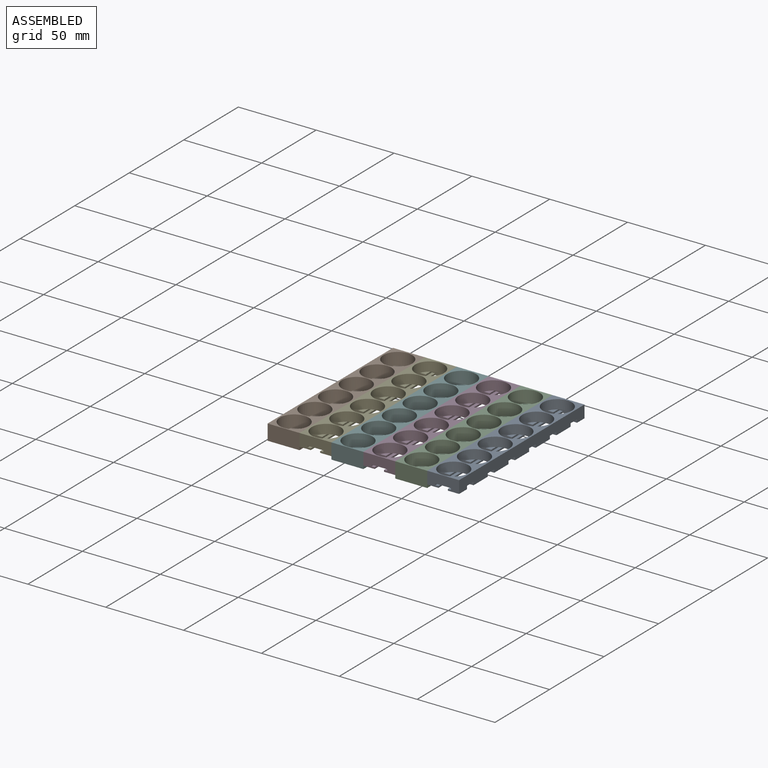
[diagram: assembled view]
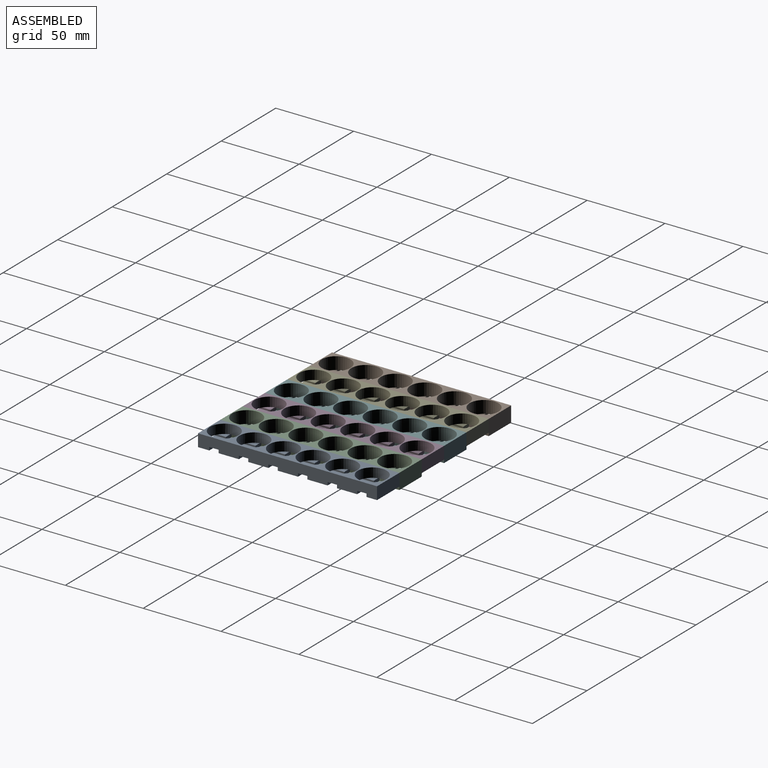
[diagram: assembled view, second angle]
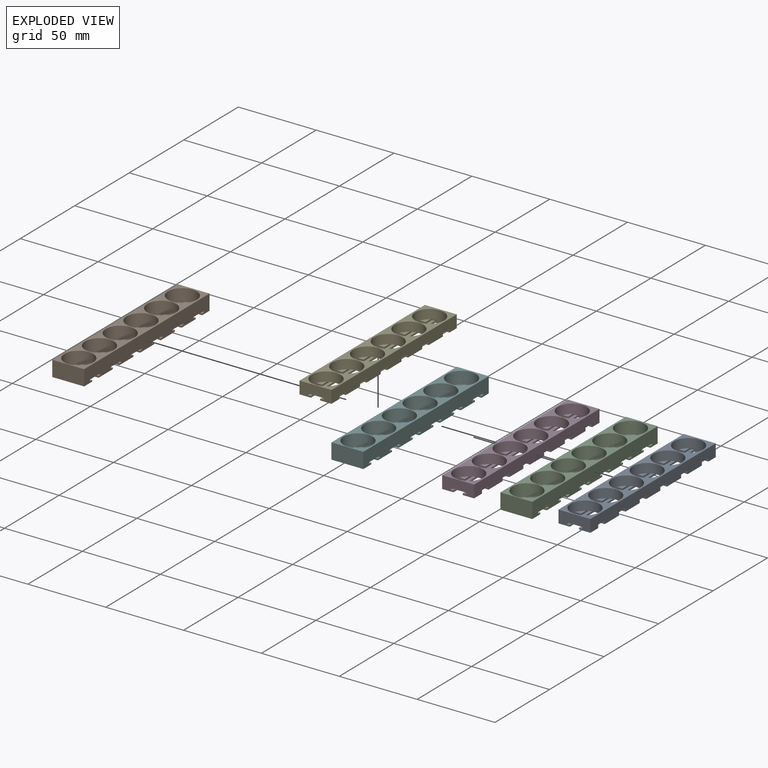
[diagram: exploded view]
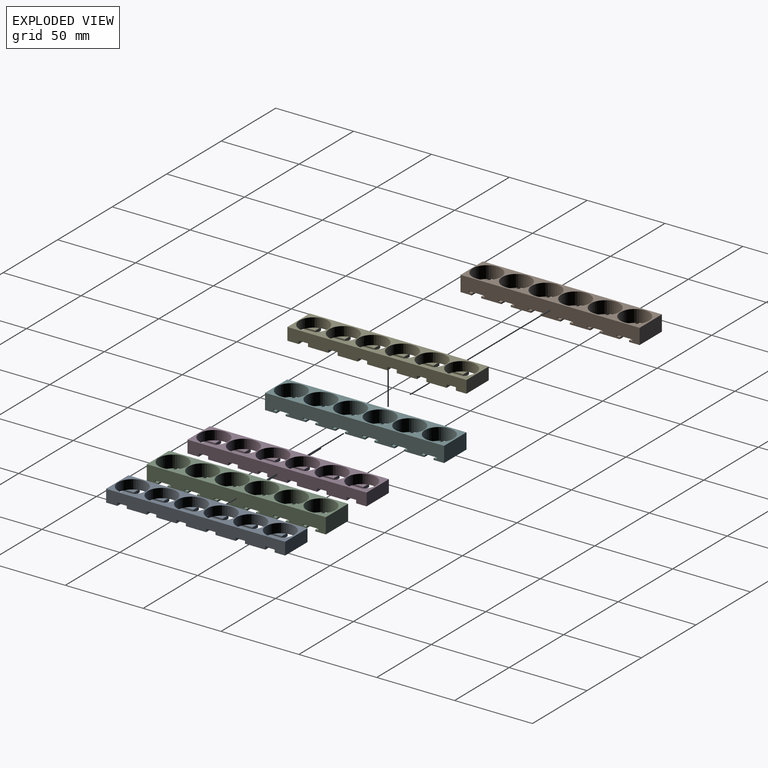
[diagram: exploded view, second angle]
ASSEMBLY  parts=6 mates=3
PART A: 135 faces, bbox 20.5x115x8 mm
  f0: plane 4.28x3.56mm, normal (0,0,1), area 9.2mm2, adj f48,f75,f118
  f1: plane 4.28x3.56mm, normal (0,0,1), area 9.2mm2, adj f47,f69,f121
  f2: plane 4.28x3.56mm, normal (0,0,1), area 9.2mm2, adj f46,f70,f124
  f3: plane 4.28x3.56mm, normal (0,0,1), area 9.2mm2, adj f45,f71,f127
  f4: plane 4.28x3.56mm, normal (0,0,1), area 9.2mm2, adj f44,f72,f130
  f5: plane 4.28x3.56mm, normal (0,0,1), area 9.2mm2, adj f43,f73,f133
  f6: plane 115x8mm, normal (1,0,0), area 848mm2, adj f13,f15,f17,f19,f21,f23,f67,f74
  f7: plane 4.28x3.56mm, normal (0,0,1), area 9.2mm2, adj f60,f75,f100
  f8: plane 4.28x3.56mm, normal (0,0,1), area 9.2mm2, adj f59,f69,f103
  f9: plane 4.28x3.56mm, normal (0,0,1), area 9.2mm2, adj f58,f70,f106
  f10: plane 4.28x3.56mm, normal (0,0,1), area 9.2mm2, adj f57,f71,f109
  f11: plane 4.28x3.56mm, normal (0,0,1), area 9.2mm2, adj f56,f72,f112
  f12: plane 4.28x3.56mm, normal (0,0,1), area 9.2mm2, adj f55,f73,f115
  f13: plane 20.5x6.75mm, normal (0,0,-1), area 103.9mm2, adj f6,f25,f31,f67,f68,f92,f115,f133
  f14: plane 13x7.25mm, normal (0,0,-1), area 94.3mm2, adj f26,f68,f112,f114
  f15: plane 13x7.25mm, normal (0,0,-1), area 94.3mm2, adj f6,f32,f130,f134
  f16: plane 13x7.25mm, normal (0,0,-1), area 94.2mm2, adj f27,f68,f109,f111
  f17: plane 13x7.25mm, normal (0,0,-1), area 94.2mm2, adj f6,f33,f127,f131
  f18: plane 13x7.25mm, normal (0,0,-1), area 94.3mm2, adj f28,f68,f106,f108
  f19: plane 13x7.25mm, normal (0,0,-1), area 94.2mm2, adj f6,f34,f124,f128
  f20: plane 13x7.25mm, normal (0,0,-1), area 94.3mm2, adj f29,f68,f103,f105
  f21: plane 13x7.25mm, normal (0,0,-1), area 94.2mm2, adj f6,f35,f121,f125
  f22: plane 13x7.25mm, normal (0,0,-1), area 94.2mm2, adj f30,f68,f100,f102
  f23: plane 13x7.25mm, normal (0,0,-1), area 94.2mm2, adj f6,f36,f118,f122
  f24: plane 7.25x7.25mm, normal (0,0,-1), area 52.6mm2, adj f68,f74,f93,f99
  f25: plane 5.75x1mm, normal (1,0,0), area 5.8mm2, adj f13,f49,f92,f115
  f26: plane 13x1mm, normal (1,0,0), area 13mm2, adj f14,f50,f112,f114
  f27: plane 13x1mm, normal (1,0,0), area 13mm2, adj f16,f51,f109,f111
  f28: plane 13x1mm, normal (1,0,0), area 13mm2, adj f18,f52,f106,f108
  f29: plane 13x1mm, normal (1,0,0), area 13mm2, adj f20,f53,f103,f105
  f30: plane 13x1mm, normal (1,0,0), area 13mm2, adj f22,f54,f100,f102
  f31: plane 5.75x1mm, normal (-1,0,0), area 5.8mm2, adj f13,f37,f92,f133
  f32: plane 13x1mm, normal (-1,0,0), area 13mm2, adj f15,f38,f130,f134
  f33: plane 13x1mm, normal (-1,0,0), area 13mm2, adj f17,f39,f127,f131
  f34: plane 13x1mm, normal (-1,0,0), area 13mm2, adj f19,f40,f124,f128
  f35: plane 13x1mm, normal (-1,0,0), area 13mm2, adj f21,f41,f121,f125
  f36: plane 13x1mm, normal (-1,0,0), area 13mm2, adj f23,f42,f118,f122
  f37: plane 5.75x2mm, normal (0,0,1), area 11.5mm2, adj f31,f43,f92,f133
  f38: plane 13x2mm, normal (0,0,1), area 26mm2, adj f32,f44,f130,f134
  f39: plane 13x2mm, normal (0,0,1), area 26mm2, adj f33,f45,f127,f131
  f40: plane 13x2mm, normal (0,0,1), area 26mm2, adj f34,f46,f124,f128
  f41: plane 13x2mm, normal (0,0,1), area 26mm2, adj f35,f47,f121,f125
  f42: plane 13x2mm, normal (0,0,1), area 26mm2, adj f36,f48,f118,f122
  f43: plane 5.75x1mm, normal (-1,0,0), area 5.8mm2, adj f5,f37,f90,f92,f133
  f44: plane 13x1mm, normal (-1,0,0), area 13mm2, adj f4,f38,f66,f89,f130,f134
  f45: plane 13x1mm, normal (-1,0,0), area 13mm2, adj f3,f39,f65,f88,f127,f131
  f46: plane 13x1mm, normal (-1,0,0), area 13mm2, adj f2,f40,f64,f87,f124,f128
  f47: plane 13x1mm, normal (-1,0,0), area 13mm2, adj f1,f41,f63,f86,f121,f125
  f48: plane 13x1mm, normal (-1,0,0), area 13mm2, adj f0,f42,f62,f84,f118,f122
  f49: plane 5.75x2mm, normal (0,0,1), area 11.5mm2, adj f25,f55,f92,f115
  f50: plane 13x2mm, normal (0,0,1), area 26mm2, adj f26,f56,f112,f114
  f51: plane 13x2mm, normal (0,0,1), area 26mm2, adj f27,f57,f109,f111
  f52: plane 13x2mm, normal (0,0,1), area 26mm2, adj f28,f58,f106,f108
  f53: plane 13x2mm, normal (0,0,1), area 26mm2, adj f29,f59,f103,f105
  f54: plane 13x2mm, normal (0,0,1), area 26mm2, adj f30,f60,f100,f102
  f55: plane 5.75x1mm, normal (1,0,0), area 5.8mm2, adj f12,f49,f91,f92,f115
  f56: plane 13x1mm, normal (1,0,0), area 13mm2, adj f11,f50,f82,f89,f112,f114
  f57: plane 13x1mm, normal (1,0,0), area 13mm2, adj f10,f51,f81,f88,f109,f111
  f58: plane 13x1mm, normal (1,0,0), area 13mm2, adj f9,f52,f80,f87,f106,f108
  f59: plane 13x1mm, normal (1,0,0), area 13mm2, adj f8,f53,f79,f86,f103,f105
  f60: plane 13x1mm, normal (1,0,0), area 13mm2, adj f7,f54,f78,f84,f100,f102
  f61: plane 5.28x3.91mm, normal (0,0,1), area 13mm2, adj f75,f96,f119
  f62: plane 5.28x3.91mm, normal (0,0,1), area 13mm2, adj f48,f69,f122
  f63: plane 5.28x3.91mm, normal (0,0,1), area 13mm2, adj f47,f70,f125
  f64: plane 5.28x3.91mm, normal (0,0,1), area 13mm2, adj f46,f71,f128
  f65: plane 5.28x3.91mm, normal (0,0,1), area 13mm2, adj f45,f72,f131
  f66: plane 5.28x3.91mm, normal (0,0,1), area 13mm2, adj f44,f73,f134
  f67: plane 20.5x8mm, normal (0,1,0), area 164mm2, adj f6,f13,f68,f76
  f68: plane 115x8mm, normal (-1,0,0), area 848mm2, adj f13,f14,f16,f18,f20,f22,f24,f67
  f69: cylinder r=9.25mm len=18.5mm, axis (0,0,-1), area 348.7mm2, adj f1,f8,f62,f76,f78,f84,f86,f104
  f70: cylinder r=9.25mm len=18.5mm, axis (0,0,-1), area 348.7mm2, adj f2,f9,f63,f76,f79,f86,f87,f107
  f71: cylinder r=9.25mm len=18.5mm, axis (0,0,-1), area 348.7mm2, adj f3,f10,f64,f76,f80,f87,f88,f110
  f72: cylinder r=9.25mm len=18.5mm, axis (0,0,-1), area 348.7mm2, adj f4,f11,f65,f76,f81,f88,f89,f113
  f73: cylinder r=9.25mm len=18.5mm, axis (0,0,-1), area 348.7mm2, adj f5,f12,f66,f76,f82,f89,f90,f91
  f74: plane 20.5x8mm, normal (0,-1,0), area 148mm2, adj f6,f24,f68,f76,f83,f85,f93,f94
  f75: cylinder r=9.25mm len=18.5mm, axis (0,0,-1), area 348.7mm2, adj f0,f7,f61,f76,f77,f84,f85,f101
  f76: plane 115x20.5mm, normal (0,0,1), area 744.7mm2, adj f6,f67,f68,f69,f70,f71,f72,f73
  f77: plane 5.28x3.91mm, normal (0,0,1), area 13mm2, adj f75,f98,f99
  f78: plane 5.28x3.91mm, normal (0,0,1), area 13mm2, adj f60,f69,f102
  f79: plane 5.28x3.91mm, normal (0,0,1), area 13mm2, adj f59,f70,f105
  f80: plane 5.28x3.91mm, normal (0,0,1), area 13mm2, adj f58,f71,f108
  f81: plane 5.28x3.91mm, normal (0,0,1), area 13mm2, adj f57,f72,f111
  f82: plane 5.28x3.91mm, normal (0,0,1), area 13mm2, adj f56,f73,f114
  f83: plane 7.25x7.25mm, normal (0,0,-1), area 52.6mm2, adj f6,f74,f94,f119
  f84: plane 10x3.44mm, normal (0,0,-1), area 14.5mm2, adj f48,f60,f69,f75
  f85: plane 10x1.97mm, normal (0,0,-1), area 9.7mm2, adj f74,f75,f96,f98
  f86: plane 10x3.44mm, normal (0,0,-1), area 14.5mm2, adj f47,f59,f69,f70
  f87: plane 10x3.44mm, normal (0,0,-1), area 14.5mm2, adj f46,f58,f70,f71
  f88: plane 10x3.44mm, normal (0,0,-1), area 14.5mm2, adj f45,f57,f71,f72
  f89: plane 10x3.44mm, normal (0,0,-1), area 14.5mm2, adj f44,f56,f72,f73
  f90: plane 5x1.47mm, normal (0,0,-1), area 2.4mm2, adj f43,f73,f92
  f91: plane 5x1.47mm, normal (0,0,-1), area 2.4mm2, adj f55,f73,f92
  f92: plane 10x2mm, normal (0,-1,0), area 16mm2, adj f13,f25,f31,f37,f43,f49,f55,f90
  f93: plane 7.25x1mm, normal (1,0,0), area 7.3mm2, adj f24,f74,f97,f99
  f94: plane 7.25x1mm, normal (-1,0,0), area 7.3mm2, adj f74,f83,f95,f119
  f95: plane 7.25x2mm, normal (0,0,1), area 14.5mm2, adj f74,f94,f96,f119
  f96: plane 7.25x1mm, normal (-1,0,0), area 7.3mm2, adj f61,f74,f85,f95,f119
  f97: plane 7.25x2mm, normal (0,0,1), area 14.5mm2, adj f74,f93,f98,f99
  f98: plane 7.25x1mm, normal (1,0,0), area 7.3mm2, adj f74,f77,f85,f97,f99
  f99: plane 7.25x2mm, normal (0,1,0), area 12.5mm2, adj f24,f68,f77,f93,f97,f98,f101
  f100: plane 7.25x2mm, normal (0,-1,0), area 12.5mm2, adj f7,f22,f30,f54,f60,f68,f101
  f101: plane 6x1.69mm, normal (0,0,-1), area 7.1mm2, adj f68,f75,f99,f100
  f102: plane 7.25x2mm, normal (0,1,0), area 12.5mm2, adj f22,f30,f54,f60,f68,f78,f104
  f103: plane 7.25x2mm, normal (0,-1,0), area 12.5mm2, adj f8,f20,f29,f53,f59,f68,f104
  f104: plane 6x1.69mm, normal (0,0,-1), area 7.1mm2, adj f68,f69,f102,f103
  f105: plane 7.25x2mm, normal (0,1,0), area 12.5mm2, adj f20,f29,f53,f59,f68,f79,f107
  f106: plane 7.25x2mm, normal (0,-1,0), area 12.5mm2, adj f9,f18,f28,f52,f58,f68,f107
  f107: plane 6x1.69mm, normal (0,0,-1), area 7.1mm2, adj f68,f70,f105,f106
  f108: plane 7.25x2mm, normal (0,1,0), area 12.5mm2, adj f18,f28,f52,f58,f68,f80,f110
  f109: plane 7.25x2mm, normal (0,-1,0), area 12.5mm2, adj f10,f16,f27,f51,f57,f68,f110
  f110: plane 6x1.69mm, normal (0,0,-1), area 7.1mm2, adj f68,f71,f108,f109
  f111: plane 7.25x2mm, normal (0,1,0), area 12.5mm2, adj f16,f27,f51,f57,f68,f81,f113
  f112: plane 7.25x2mm, normal (0,-1,0), area 12.5mm2, adj f11,f14,f26,f50,f56,f68,f113
  f113: plane 6x1.69mm, normal (0,0,-1), area 7.1mm2, adj f68,f72,f111,f112
  f114: plane 7.25x2mm, normal (0,1,0), area 12.5mm2, adj f14,f26,f50,f56,f68,f82,f116
  f115: plane 7.25x2mm, normal (0,-1,0), area 12.5mm2, adj f12,f13,f25,f49,f55,f68,f116
  f116: plane 6x1.69mm, normal (0,0,-1), area 7.1mm2, adj f68,f73,f114,f115
  f117: plane 6x1.69mm, normal (0,0,-1), area 7.1mm2, adj f6,f75,f118,f119
  f118: plane 7.25x2mm, normal (0,-1,0), area 12.5mm2, adj f0,f6,f23,f36,f42,f48,f117
  f119: plane 7.25x2mm, normal (0,1,0), area 12.5mm2, adj f6,f61,f83,f94,f95,f96,f117
  f120: plane 6x1.69mm, normal (0,0,-1), area 7.1mm2, adj f6,f69,f121,f122
  f121: plane 7.25x2mm, normal (0,-1,0), area 12.5mm2, adj f1,f6,f21,f35,f41,f47,f120
  f122: plane 7.25x2mm, normal (0,1,0), area 12.5mm2, adj f6,f23,f36,f42,f48,f62,f120
  f123: plane 6x1.69mm, normal (0,0,-1), area 7.1mm2, adj f6,f70,f124,f125
  f124: plane 7.25x2mm, normal (0,-1,0), area 12.5mm2, adj f2,f6,f19,f34,f40,f46,f123
  f125: plane 7.25x2mm, normal (0,1,0), area 12.5mm2, adj f6,f21,f35,f41,f47,f63,f123
  f126: plane 6x1.69mm, normal (0,0,-1), area 7.1mm2, adj f6,f71,f127,f128
  f127: plane 7.25x2mm, normal (0,-1,0), area 12.5mm2, adj f3,f6,f17,f33,f39,f45,f126
  f128: plane 7.25x2mm, normal (0,1,0), area 12.5mm2, adj f6,f19,f34,f40,f46,f64,f126
  f129: plane 6x1.69mm, normal (0,0,-1), area 7.1mm2, adj f6,f72,f130,f131
  f130: plane 7.25x2mm, normal (0,-1,0), area 12.5mm2, adj f4,f6,f15,f32,f38,f44,f129
  f131: plane 7.25x2mm, normal (0,1,0), area 12.5mm2, adj f6,f17,f33,f39,f45,f65,f129
  f132: plane 6x1.69mm, normal (0,0,-1), area 7.1mm2, adj f6,f73,f133,f134
  f133: plane 7.25x2mm, normal (0,-1,0), area 12.5mm2, adj f5,f6,f13,f31,f37,f43,f132
  f134: plane 7.25x2mm, normal (0,1,0), area 12.5mm2, adj f6,f15,f32,f38,f44,f66,f132
PART B: 78 faces, bbox 20.5x115x10 mm
  f0: plane 20.5x10mm, normal (0,-1,0), area 205mm2, adj f14,f15,f28,f77
  f1: plane 20.5x1mm, normal (0,1,0), area 20.5mm2, adj f14,f15,f39,f77
  f2: plane 20.5x1mm, normal (0,-1,0), area 20.5mm2, adj f14,f15,f40,f76
  f3: plane 20.5x10mm, normal (0,1,0), area 205mm2, adj f14,f15,f28,f71
  f4: plane 20.5x1mm, normal (0,1,0), area 20.5mm2, adj f14,f15,f45,f76
  f5: plane 20.5x1mm, normal (0,-1,0), area 20.5mm2, adj f14,f15,f46,f75
  f6: plane 20.5x1mm, normal (0,1,0), area 20.5mm2, adj f14,f15,f51,f75
  f7: plane 20.5x1mm, normal (0,-1,0), area 20.5mm2, adj f14,f15,f52,f74
  f8: plane 20.5x1mm, normal (0,1,0), area 20.5mm2, adj f14,f15,f57,f74
  f9: plane 20.5x1mm, normal (0,-1,0), area 20.5mm2, adj f14,f15,f58,f73
  f10: plane 20.5x1mm, normal (0,1,0), area 20.5mm2, adj f14,f15,f63,f73
  f11: plane 20.5x1mm, normal (0,-1,0), area 20.5mm2, adj f14,f15,f64,f72
  f12: plane 20.5x1mm, normal (0,1,0), area 20.5mm2, adj f14,f15,f69,f72
  f13: plane 20.5x1mm, normal (0,-1,0), area 20.5mm2, adj f14,f15,f70,f71
  f14: plane 115x10mm, normal (1,0,0), area 1054mm2, adj f0,f1,f2,f3,f4,f5,f6,f7
  f15: plane 115x10mm, normal (-1,0,0), area 1054mm2, adj f0,f1,f2,f3,f4,f5,f6,f7
  f16: plane 14.87x3.75mm, normal (0,0,1), area 39mm2, adj f27,f35
  f17: plane 14.87x3.75mm, normal (0,0,1), area 39mm2, adj f22,f41
  f18: plane 14.87x3.75mm, normal (0,0,1), area 39mm2, adj f23,f47
  f19: plane 14.87x3.75mm, normal (0,0,1), area 39mm2, adj f24,f53
  f20: plane 14.87x3.75mm, normal (0,0,1), area 39mm2, adj f25,f59
  f21: plane 14.87x3.75mm, normal (0,0,1), area 39mm2, adj f26,f65
  f22: cylinder r=9.25mm len=18.5mm, axis (0,0,-1), area 465mm2, adj f17,f28,f30,f42,f43
  f23: cylinder r=9.25mm len=18.5mm, axis (0,0,-1), area 465mm2, adj f18,f28,f31,f48,f49
  f24: cylinder r=9.25mm len=18.5mm, axis (0,0,-1), area 465mm2, adj f19,f28,f32,f54,f55
  f25: cylinder r=9.25mm len=18.5mm, axis (0,0,-1), area 465mm2, adj f20,f28,f33,f60,f61
  f26: cylinder r=9.25mm len=18.5mm, axis (0,0,-1), area 465mm2, adj f21,f28,f34,f66,f67
  f27: cylinder r=9.25mm len=18.5mm, axis (0,0,-1), area 465mm2, adj f16,f28,f29,f36,f37
  f28: plane 115x20.5mm, normal (0,0,1), area 744.7mm2, adj f0,f3,f14,f15,f22,f23,f24,f25
  f29: plane 16.16x4.75mm, normal (0,0,1), area 54.6mm2, adj f27,f38
  f30: plane 16.16x4.75mm, normal (0,0,1), area 54.6mm2, adj f22,f44
  f31: plane 16.16x4.75mm, normal (0,0,1), area 54.6mm2, adj f23,f50
  f32: plane 16.16x4.75mm, normal (0,0,1), area 54.6mm2, adj f24,f56
  f33: plane 16.16x4.75mm, normal (0,0,1), area 54.6mm2, adj f25,f62
  f34: plane 16.16x4.75mm, normal (0,0,1), area 54.6mm2, adj f26,f68
  f35: plane 20.5x1mm, normal (0,-1,0), area 20.5mm2, adj f14,f15,f16,f36,f37,f40
  f36: plane 10x2.81mm, normal (0,0,-1), area 14.9mm2, adj f15,f27,f35,f38
  f37: plane 10x2.81mm, normal (0,0,-1), area 14.9mm2, adj f14,f27,f35,f38
  f38: plane 20.5x1mm, normal (0,1,0), area 20.5mm2, adj f14,f15,f29,f36,f37,f39
  f39: plane 20.5x2mm, normal (0,0,1), area 41mm2, adj f1,f14,f15,f38
  f40: plane 20.5x2mm, normal (0,0,1), area 41mm2, adj f2,f14,f15,f35
  f41: plane 20.5x1mm, normal (0,-1,0), area 20.5mm2, adj f14,f15,f17,f42,f43,f46
  f42: plane 10x2.81mm, normal (0,0,-1), area 14.9mm2, adj f15,f22,f41,f44
  f43: plane 10x2.81mm, normal (0,0,-1), area 14.9mm2, adj f14,f22,f41,f44
  f44: plane 20.5x1mm, normal (0,1,0), area 20.5mm2, adj f14,f15,f30,f42,f43,f45
  f45: plane 20.5x2mm, normal (0,0,1), area 41mm2, adj f4,f14,f15,f44
  f46: plane 20.5x2mm, normal (0,0,1), area 41mm2, adj f5,f14,f15,f41
  f47: plane 20.5x1mm, normal (0,-1,-0.01), area 20.5mm2, adj f14,f15,f18,f48,f49,f52
  f48: plane 10x2.81mm, normal (0,0,-1), area 14.9mm2, adj f15,f23,f47,f50
  f49: plane 10x2.81mm, normal (0,0,-1), area 14.9mm2, adj f14,f23,f47,f50
  f50: plane 20.5x1mm, normal (0,1,0.01), area 20.5mm2, adj f14,f15,f31,f48,f49,f51
  f51: plane 20.5x2mm, normal (0,0,1), area 41mm2, adj f6,f14,f15,f50
  f52: plane 20.5x2mm, normal (0,0,1), area 41mm2, adj f7,f14,f15,f47
  f53: plane 20.5x1mm, normal (0,-1,0.04), area 20.5mm2, adj f14,f15,f19,f54,f55,f58
  f54: plane 10x2.81mm, normal (0,0,-1), area 14.9mm2, adj f15,f24,f53,f56
  f55: plane 10x2.81mm, normal (0,0,-1), area 14.9mm2, adj f14,f24,f53,f56
  f56: plane 20.5x1mm, normal (0,1,-0.04), area 20.5mm2, adj f14,f15,f32,f54,f55,f57
  f57: plane 20.5x2mm, normal (0,0,1), area 41mm2, adj f8,f14,f15,f56
  f58: plane 20.5x2mm, normal (0,0,1), area 41mm2, adj f9,f14,f15,f53
  f59: plane 20.5x1mm, normal (0,-1,0), area 20.5mm2, adj f14,f15,f20,f60,f61,f64
  f60: plane 10x2.81mm, normal (0,0,-1), area 14.9mm2, adj f15,f25,f59,f62
  f61: plane 10x2.81mm, normal (0,0,-1), area 14.9mm2, adj f14,f25,f59,f62
  f62: plane 20.5x1mm, normal (0,1,0), area 20.5mm2, adj f14,f15,f33,f60,f61,f63
  f63: plane 20.5x2mm, normal (0,0,1), area 41mm2, adj f10,f14,f15,f62
  f64: plane 20.5x2mm, normal (0,0,1), area 41mm2, adj f11,f14,f15,f59
  f65: plane 20.5x1mm, normal (0,-1,0.02), area 20.5mm2, adj f14,f15,f21,f66,f67,f70
  f66: plane 10x2.81mm, normal (0,0,-1), area 14.9mm2, adj f15,f26,f65,f68
  f67: plane 10x2.81mm, normal (0,0,-1), area 14.9mm2, adj f14,f26,f65,f68
  f68: plane 20.5x1mm, normal (0,1,-0.02), area 20.5mm2, adj f14,f15,f34,f66,f67,f69
  f69: plane 20.5x2mm, normal (0,0,1), area 41mm2, adj f12,f14,f15,f68
  f70: plane 20.5x2mm, normal (0,0,1), area 41mm2, adj f13,f14,f15,f65
  f71: plane 20.5x6.77mm, normal (0,0,-1), area 138.7mm2, adj f3,f13,f14,f15
  f72: plane 20.5x12.99mm, normal (0,0,-1), area 266.2mm2, adj f11,f12,f14,f15
  f73: plane 20.5x13.03mm, normal (0,0,-1), area 267.2mm2, adj f9,f10,f14,f15
  f74: plane 20.5x12.95mm, normal (0,0,-1), area 265.5mm2, adj f7,f8,f14,f15
  f75: plane 20.5x13.01mm, normal (0,0,-1), area 266.8mm2, adj f5,f6,f14,f15
  f76: plane 20.5x13mm, normal (0,0,-1), area 266.5mm2, adj f2,f4,f14,f15
  f77: plane 20.5x7.25mm, normal (0,0,-1), area 148.6mm2, adj f0,f1,f14,f15
PART C: same geometry as B
PART D: same geometry as A
PART E: same geometry as A
PART F: same geometry as B
PLACE A t=(27.04,29.1,-4.01)mm
PLACE B t=(-75.46,29.1,-6.01)mm
PLACE C t=(6.54,29.1,-6.01)mm
PLACE D t=(-13.96,29.1,-4.01)mm
PLACE E t=(-54.96,29.1,-4.01)mm
PLACE F t=(-34.46,29.1,-6.01)mm
MATE planar B.f14 <-> E.f68  axis (1,0,0) through (-75.46,-82.27,-8.01)mm
MATE planar E.f74 <-> B.f0  axis (0,-1,0) through (-70.21,-85.9,-4.01)mm
MATE planar E.f18 <-> B.f29  axis (0,0,-1) through (-71.83,-28.15,-6.01)mm
